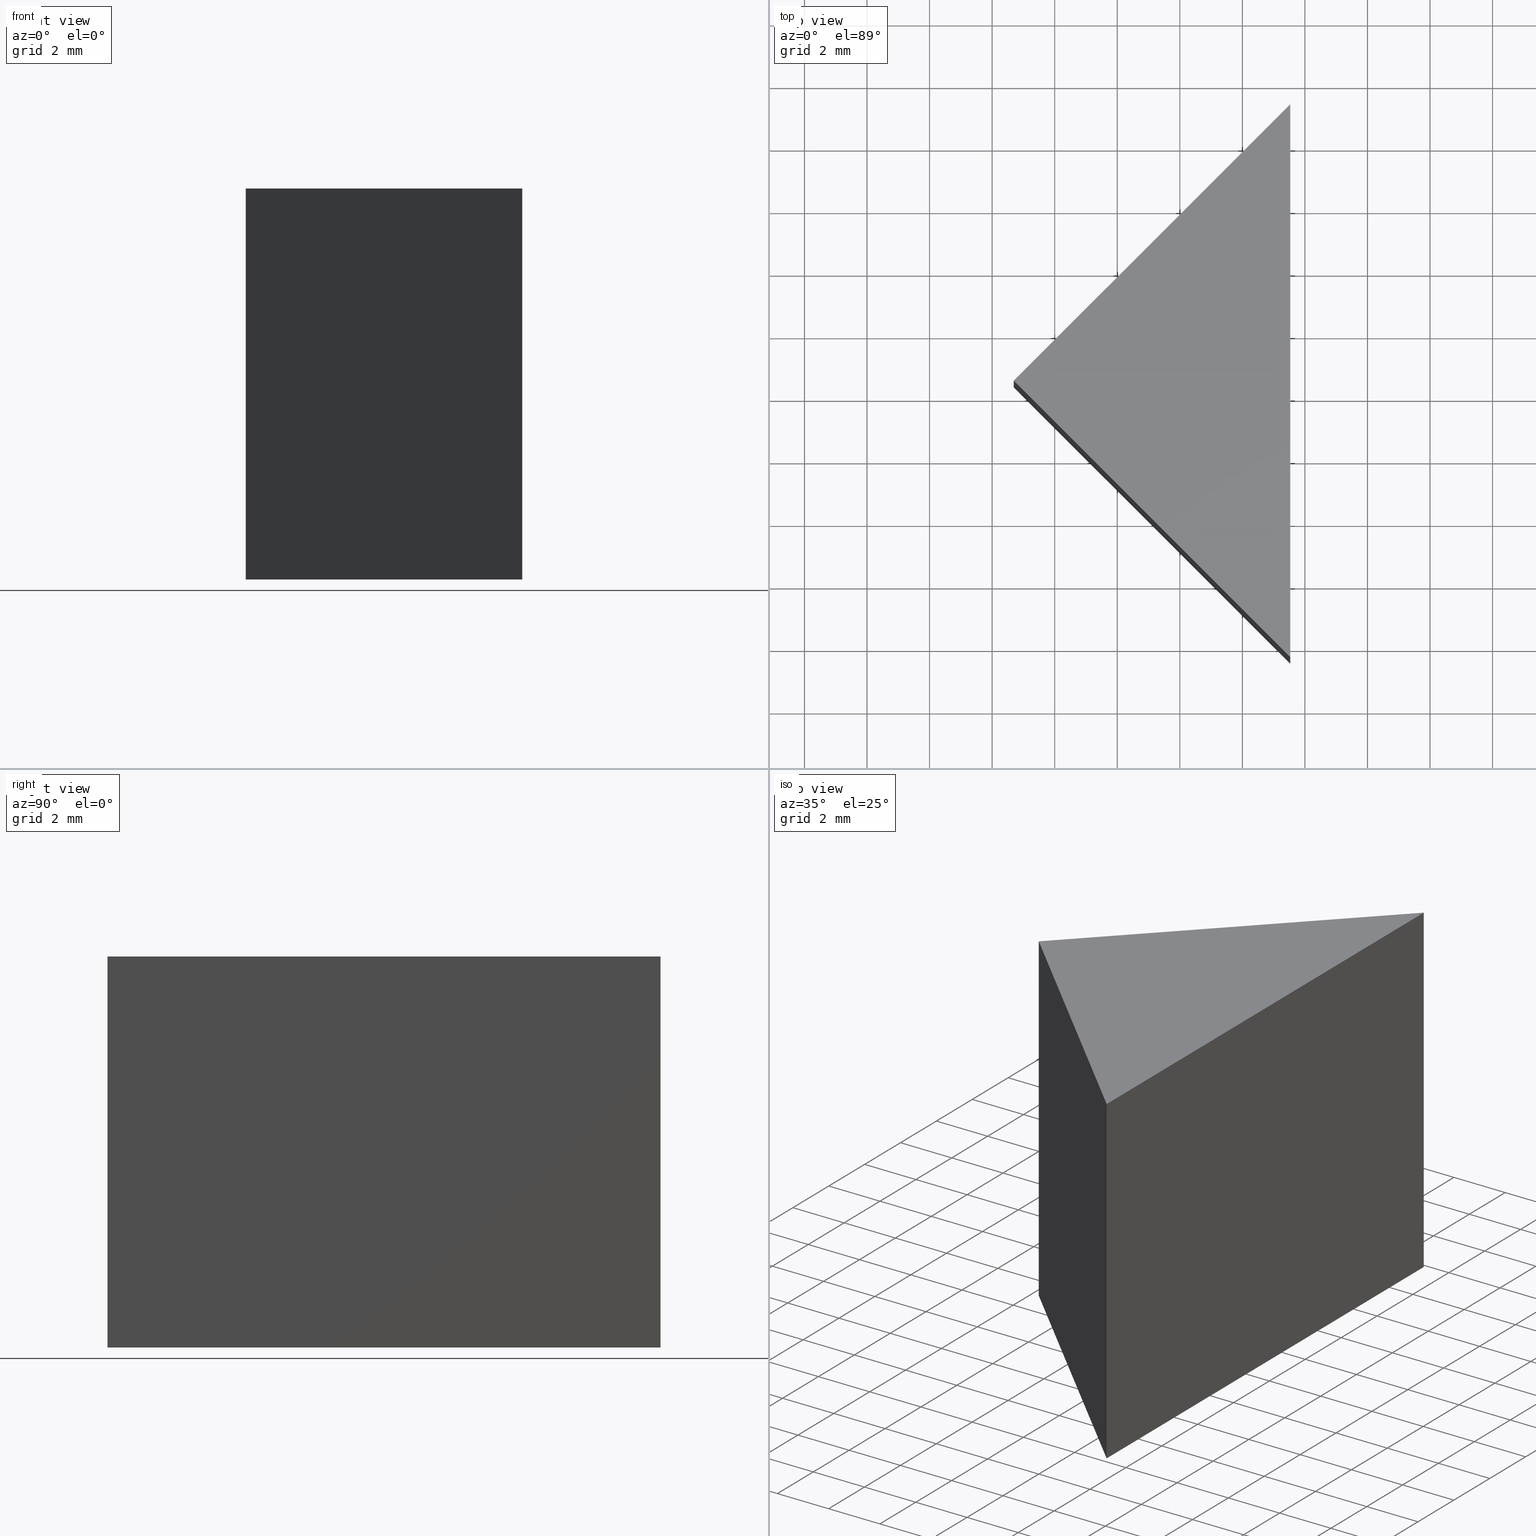
[diagram: canonical four-view strip — front | top / right | iso, engineering-drawing reading convention]
A machine part, canonical four-view strip (front | top / right | iso — engineering-drawing reading convention). The complete STEP part file that produces these views, byte-faithful:
ISO-10303-21;
HEADER;
FILE_DESCRIPTION (( 'STEP AP214' ),
    '1' );
FILE_NAME ('30002.STEP',
    '2019-08-12T07:45:10',
    ( '' ),
    ( '' ),
    'SwSTEP 2.0',
    'SolidWorks 2016',
    '' );
FILE_SCHEMA (( 'AUTOMOTIVE_DESIGN' ));
ENDSEC;

DATA;
#1 = CARTESIAN_POINT ( 'NONE',  ( 138.6916748814873000, 34.43923138208515400, 0.0000000000000000000 ) ) ;
#2 = ORIENTED_EDGE ( 'NONE', *, *, #36, .F. ) ;
#3 =( LENGTH_UNIT ( ) NAMED_UNIT ( * ) SI_UNIT ( .MILLI., .METRE. ) );
#4 =( GEOMETRIC_REPRESENTATION_CONTEXT ( 3 ) GLOBAL_UNCERTAINTY_ASSIGNED_CONTEXT ( ( #96 ) ) GLOBAL_UNIT_ASSIGNED_CONTEXT ( ( #75, #160, #60 ) ) REPRESENTATION_CONTEXT ( 'NONE', 'WORKASPACE' ) );
#5 = VECTOR ( 'NONE', #156, 1000.000000000000000 ) ;
#6 = SURFACE_STYLE_FILL_AREA ( #59 ) ;
#7 = MECHANICAL_DESIGN_GEOMETRIC_PRESENTATION_REPRESENTATION (  '', ( #107 ), #4 ) ;
#8 = VECTOR ( 'NONE', #97, 1000.000000000000000 ) ;
#9 = ORIENTED_EDGE ( 'NONE', *, *, #32, .F. ) ;
#10 = ORIENTED_EDGE ( 'NONE', *, *, #47, .F. ) ;
#11 = LINE ( 'NONE', #109, #169 ) ;
#12 = EDGE_CURVE ( 'NONE', #16, #167, #71, .T. ) ;
#13 = VERTEX_POINT ( 'NONE', #99 ) ;
#14 = DIRECTION ( 'NONE',  ( 0.7071067811865484600, 0.7071067811865465700, -0.0000000000000000000 ) ) ;
#15 = CARTESIAN_POINT ( 'NONE',  ( 138.6916748814873000, 34.43923138208515400, 12.50000000000000000 ) ) ;
#16 = VERTEX_POINT ( 'NONE', #117 ) ;
#17 = PRESENTATION_LAYER_ASSIGNMENT (  '', '', ( #124 ) ) ;
#18 = DIRECTION ( 'NONE',  ( 1.000000000000000000, 0.0000000000000000000, 0.0000000000000000000 ) ) ;
#19 = DIRECTION ( 'NONE',  ( 0.0000000000000000000, 0.0000000000000000000, 1.000000000000000000 ) ) ;
#20 = ORIENTED_EDGE ( 'NONE', *, *, #36, .T. ) ;
#21 = EDGE_LOOP ( 'NONE', ( #159, #20, #127 ) ) ;
#22 = PRODUCT_DEFINITION_FORMATION_WITH_SPECIFIED_SOURCE ( '�κ�', '', #131, .NOT_KNOWN. ) ;
#23 = EDGE_CURVE ( 'NONE', #13, #16, #38, .T. ) ;
#24 = EDGE_CURVE ( 'NONE', #43, #167, #152, .T. ) ;
#25 = DIRECTION ( 'NONE',  ( -0.0000000000000000000, -0.0000000000000000000, -1.000000000000000000 ) ) ;
#26 = DIRECTION ( 'NONE',  ( -0.0000000000000000000, -0.0000000000000000000, -1.000000000000000000 ) ) ;
#27 = ADVANCED_BREP_SHAPE_REPRESENTATION ( '30002', ( #166, #164 ), #153 ) ;
#28 =( LENGTH_UNIT ( ) NAMED_UNIT ( * ) SI_UNIT ( .MILLI., .METRE. ) );
#29 = DIRECTION ( 'NONE',  ( -1.000000000000000000, 1.570092458683774900E-015, 0.0000000000000000000 ) ) ;
#30 = PRESENTATION_LAYER_ASSIGNMENT (  '', '', ( #107 ) ) ;
#31 = APPLICATION_PROTOCOL_DEFINITION ( 'draft international standard', 'automotive_design', 1998, #61 ) ;
#32 = EDGE_CURVE ( 'NONE', #87, #43, #11, .T. ) ;
#33 = FACE_OUTER_BOUND ( 'NONE', #91, .T. ) ;
#34 = FACE_OUTER_BOUND ( 'NONE', #21, .T. ) ;
#35 = ADVANCED_FACE ( 'NONE', ( #84 ), #129, .F. ) ;
#36 = EDGE_CURVE ( 'NONE', #157, #13, #79, .T. ) ;
#37 = SHAPE_DEFINITION_REPRESENTATION ( #69, #27 ) ;
#38 = LINE ( 'NONE', #158, #5 ) ;
#39 = PRESENTATION_STYLE_ASSIGNMENT (( #48 ) ) ;
#40 = PRODUCT_RELATED_PRODUCT_CATEGORY ( 'part', '', ( #131 ) ) ;
#41 = LINE ( 'NONE', #67, #142 ) ;
#42 = EDGE_CURVE ( 'NONE', #157, #87, #116, .T. ) ;
#43 = VERTEX_POINT ( 'NONE', #56 ) ;
#44 = APPLICATION_PROTOCOL_DEFINITION ( 'draft international standard', 'automotive_design', 1998, #45 ) ;
#45 = APPLICATION_CONTEXT ( 'automotive_design' ) ;
#46 = PLANE ( 'NONE',  #64 ) ;
#47 = EDGE_CURVE ( 'NONE', #13, #43, #136, .T. ) ;
#48 = SURFACE_STYLE_USAGE ( .BOTH. , #100 ) ;
#49 = VECTOR ( 'NONE', #25, 1000.000000000000000 ) ;
#50 = ORIENTED_EDGE ( 'NONE', *, *, #24, .F. ) ;
#51 = EDGE_LOOP ( 'NONE', ( #95, #10, #2, #62 ) ) ;
#52 = EDGE_LOOP ( 'NONE', ( #134, #125, #147, #115 ) ) ;
#53 = AXIS2_PLACEMENT_3D ( 'NONE', #101, #90, #126 ) ;
#54 = DIRECTION ( 'NONE',  ( -0.7071067811865481300, -0.7071067811865470200, -0.0000000000000000000 ) ) ;
#55 = CLOSED_SHELL ( 'NONE', ( #94, #155, #35, #139, #104 ) ) ;
#56 = CARTESIAN_POINT ( 'NONE',  ( 147.5305096463191600, 43.27806614691699800, 0.0000000000000000000 ) ) ;
#57 = DIRECTION ( 'NONE',  ( 1.570092458683774700E-015, 1.000000000000000000, 0.0000000000000000000 ) ) ;
#58 = ORIENTED_EDGE ( 'NONE', *, *, #12, .T. ) ;
#59 = FILL_AREA_STYLE ('',( #76 ) ) ;
#60 =( NAMED_UNIT ( * ) SI_UNIT ( $, .STERADIAN. ) SOLID_ANGLE_UNIT ( ) );
#61 = APPLICATION_CONTEXT ( 'automotive_design' ) ;
#62 = ORIENTED_EDGE ( 'NONE', *, *, #42, .T. ) ;
#63 = UNCERTAINTY_MEASURE_WITH_UNIT (LENGTH_MEASURE( 1.000000000000000100E-005 ), #3, 'distance_accuracy_value', 'NONE');
#64 = AXIS2_PLACEMENT_3D ( 'NONE', #121, #29, #148 ) ;
#65 = FACE_OUTER_BOUND ( 'NONE', #51, .T. ) ;
#66 = ORIENTED_EDGE ( 'NONE', *, *, #42, .F. ) ;
#67 = CARTESIAN_POINT ( 'NONE',  ( 138.6916748814873000, 34.43923138208515400, 0.0000000000000000000 ) ) ;
#68 = CARTESIAN_POINT ( 'NONE',  ( 138.6916748814873000, 34.43923138208515400, 12.50000000000000000 ) ) ;
#69 = PRODUCT_DEFINITION_SHAPE ( 'NONE', 'NONE',  #123 ) ;
#70 = CARTESIAN_POINT ( 'NONE',  ( 138.6916748814873000, 34.43923138208515400, 0.0000000000000000000 ) ) ;
#71 = LINE ( 'NONE', #68, #114 ) ;
#72 = EDGE_CURVE ( 'NONE', #167, #87, #41, .T. ) ;
#73 = DIRECTION ( 'NONE',  ( 0.7071067811865465700, -0.7071067811865484600, 0.0000000000000000000 ) ) ;
#74 = DIRECTION ( 'NONE',  ( 1.000000000000000000, 0.0000000000000000000, 0.0000000000000000000 ) ) ;
#75 =( LENGTH_UNIT ( ) NAMED_UNIT ( * ) SI_UNIT ( .MILLI., .METRE. ) );
#76 = FILL_AREA_STYLE_COLOUR ( '', #133 ) ;
#77 = AXIS2_PLACEMENT_3D ( 'NONE', #15, #110, #119 ) ;
#78 = DIRECTION ( 'NONE',  ( -0.7071067811865465700, 0.7071067811865484600, 0.0000000000000000000 ) ) ;
#79 = LINE ( 'NONE', #85, #81 ) ;
#80 = SURFACE_STYLE_FILL_AREA ( #102 ) ;
#81 = VECTOR ( 'NONE', #57, 1000.000000000000000 ) ;
#82 = EDGE_CURVE ( 'NONE', #16, #157, #108, .T. ) ;
#83 = CARTESIAN_POINT ( 'NONE',  ( 138.6916748814873000, 34.43923138208515400, 12.50000000000000000 ) ) ;
#84 = FACE_OUTER_BOUND ( 'NONE', #52, .T. ) ;
#85 = CARTESIAN_POINT ( 'NONE',  ( 147.5305096463191300, 25.60039661725330600, 12.50000000000000000 ) ) ;
#86 = ORIENTED_EDGE ( 'NONE', *, *, #72, .F. ) ;
#87 = VERTEX_POINT ( 'NONE', #130 ) ;
#88 = SURFACE_SIDE_STYLE ('',( #80 ) ) ;
#89 = PLANE ( 'NONE',  #53 ) ;
#90 = DIRECTION ( 'NONE',  ( -0.0000000000000000000, 0.0000000000000000000, 1.000000000000000000 ) ) ;
#91 = EDGE_LOOP ( 'NONE', ( #86, #50, #9 ) ) ;
#92 = AXIS2_PLACEMENT_3D ( 'NONE', #98, #14, #78 ) ;
#93 = EDGE_LOOP ( 'NONE', ( #118, #66, #154, #58 ) ) ;
#94 = ADVANCED_FACE ( 'NONE', ( #165 ), #145, .F. ) ;
#95 = ORIENTED_EDGE ( 'NONE', *, *, #32, .T. ) ;
#96 = UNCERTAINTY_MEASURE_WITH_UNIT (LENGTH_MEASURE( 1.000000000000000100E-005 ), #75, 'distance_accuracy_value', 'NONE');
#97 = DIRECTION ( 'NONE',  ( -0.0000000000000000000, -0.0000000000000000000, -1.000000000000000000 ) ) ;
#98 = CARTESIAN_POINT ( 'NONE',  ( 138.6916748814873000, 34.43923138208515400, 12.50000000000000000 ) ) ;
#99 = CARTESIAN_POINT ( 'NONE',  ( 147.5305096463191600, 43.27806614691699800, 12.50000000000000000 ) ) ;
#100 = SURFACE_SIDE_STYLE ('',( #6 ) ) ;
#101 = CARTESIAN_POINT ( 'NONE',  ( 0.0000000000000000000, 0.0000000000000000000, 12.50000000000000000 ) ) ;
#102 = FILL_AREA_STYLE ('',( #113 ) ) ;
#103 = PRODUCT_CONTEXT ( 'NONE', #61, 'mechanical' ) ;
#104 = ADVANCED_FACE ( 'NONE', ( #33 ), #162, .F. ) ;
#105 = AXIS2_PLACEMENT_3D ( 'NONE', #149, #151, #74 ) ;
#106 = VECTOR ( 'NONE', #73, 1000.000000000000100 ) ;
#107 = STYLED_ITEM ( 'NONE', ( #39 ), #27 ) ;
#108 = LINE ( 'NONE', #83, #106 ) ;
#109 = CARTESIAN_POINT ( 'NONE',  ( 147.5305096463191300, 25.60039661725330600, 0.0000000000000000000 ) ) ;
#110 = DIRECTION ( 'NONE',  ( 0.7071067811865470200, -0.7071067811865481300, 0.0000000000000000000 ) ) ;
#111 =( NAMED_UNIT ( * ) PLANE_ANGLE_UNIT ( ) SI_UNIT ( $, .RADIAN. ) );
#112 = SURFACE_STYLE_USAGE ( .BOTH. , #88 ) ;
#113 = FILL_AREA_STYLE_COLOUR ( '', #132 ) ;
#114 = VECTOR ( 'NONE', #26, 1000.000000000000000 ) ;
#115 = ORIENTED_EDGE ( 'NONE', *, *, #47, .T. ) ;
#116 = LINE ( 'NONE', #120, #49 ) ;
#117 = CARTESIAN_POINT ( 'NONE',  ( 138.6916748814873000, 34.43923138208515400, 12.50000000000000000 ) ) ;
#118 = ORIENTED_EDGE ( 'NONE', *, *, #72, .T. ) ;
#119 = DIRECTION ( 'NONE',  ( 0.7071067811865481300, 0.7071067811865470200, 0.0000000000000000000 ) ) ;
#120 = CARTESIAN_POINT ( 'NONE',  ( 147.5305096463191300, 25.60039661725330600, 12.50000000000000000 ) ) ;
#121 = CARTESIAN_POINT ( 'NONE',  ( 147.5305096463191300, 25.60039661725330600, 12.50000000000000000 ) ) ;
#122 =( NAMED_UNIT ( * ) PLANE_ANGLE_UNIT ( ) SI_UNIT ( $, .RADIAN. ) );
#123 = PRODUCT_DEFINITION ( 'δ֪', '', #22, #140 ) ;
#124 = STYLED_ITEM ( 'NONE', ( #137 ), #166 ) ;
#125 = ORIENTED_EDGE ( 'NONE', *, *, #12, .F. ) ;
#126 = DIRECTION ( 'NONE',  ( 1.000000000000000000, 0.0000000000000000000, 0.0000000000000000000 ) ) ;
#127 = ORIENTED_EDGE ( 'NONE', *, *, #23, .T. ) ;
#128 = MECHANICAL_DESIGN_GEOMETRIC_PRESENTATION_REPRESENTATION (  '', ( #124 ), #141 ) ;
#129 = PLANE ( 'NONE',  #77 ) ;
#130 = CARTESIAN_POINT ( 'NONE',  ( 147.5305096463191300, 25.60039661725330600, 0.0000000000000000000 ) ) ;
#131 = PRODUCT ( '30002', '30002', '', ( #103 ) ) ;
#132 = COLOUR_RGB ( '',1.000000000000000000, 1.000000000000000000, 1.000000000000000000 ) ;
#133 = COLOUR_RGB ( '',1.000000000000000000, 1.000000000000000000, 1.000000000000000000 ) ;
#134 = ORIENTED_EDGE ( 'NONE', *, *, #24, .T. ) ;
#135 =( NAMED_UNIT ( * ) SI_UNIT ( $, .STERADIAN. ) SOLID_ANGLE_UNIT ( ) );
#136 = LINE ( 'NONE', #146, #8 ) ;
#137 = PRESENTATION_STYLE_ASSIGNMENT (( #112 ) ) ;
#138 = UNCERTAINTY_MEASURE_WITH_UNIT (LENGTH_MEASURE( 1.000000000000000100E-005 ), #28, 'distance_accuracy_value', 'NONE');
#139 = ADVANCED_FACE ( 'NONE', ( #34 ), #89, .T. ) ;
#140 = PRODUCT_DEFINITION_CONTEXT ( 'detailed design', #45, 'design' ) ;
#141 =( GEOMETRIC_REPRESENTATION_CONTEXT ( 3 ) GLOBAL_UNCERTAINTY_ASSIGNED_CONTEXT ( ( #63 ) ) GLOBAL_UNIT_ASSIGNED_CONTEXT ( ( #3, #111, #135 ) ) REPRESENTATION_CONTEXT ( 'NONE', 'WORKASPACE' ) );
#142 = VECTOR ( 'NONE', #143, 1000.000000000000100 ) ;
#143 = DIRECTION ( 'NONE',  ( 0.7071067811865465700, -0.7071067811865484600, 0.0000000000000000000 ) ) ;
#144 = VECTOR ( 'NONE', #54, 1000.000000000000000 ) ;
#145 = PLANE ( 'NONE',  #92 ) ;
#146 = CARTESIAN_POINT ( 'NONE',  ( 147.5305096463191600, 43.27806614691699800, 12.50000000000000000 ) ) ;
#147 = ORIENTED_EDGE ( 'NONE', *, *, #23, .F. ) ;
#148 = DIRECTION ( 'NONE',  ( -1.570092458683774900E-015, -1.000000000000000000, 0.0000000000000000000 ) ) ;
#149 = CARTESIAN_POINT ( 'NONE',  ( 0.0000000000000000000, 0.0000000000000000000, 0.0000000000000000000 ) ) ;
#150 =( NAMED_UNIT ( * ) SI_UNIT ( $, .STERADIAN. ) SOLID_ANGLE_UNIT ( ) );
#151 = DIRECTION ( 'NONE',  ( -0.0000000000000000000, 0.0000000000000000000, 1.000000000000000000 ) ) ;
#152 = LINE ( 'NONE', #70, #144 ) ;
#153 =( GEOMETRIC_REPRESENTATION_CONTEXT ( 3 ) GLOBAL_UNCERTAINTY_ASSIGNED_CONTEXT ( ( #138 ) ) GLOBAL_UNIT_ASSIGNED_CONTEXT ( ( #28, #122, #150 ) ) REPRESENTATION_CONTEXT ( 'NONE', 'WORKASPACE' ) );
#154 = ORIENTED_EDGE ( 'NONE', *, *, #82, .F. ) ;
#155 = ADVANCED_FACE ( 'NONE', ( #65 ), #46, .F. ) ;
#156 = DIRECTION ( 'NONE',  ( -0.7071067811865481300, -0.7071067811865470200, -0.0000000000000000000 ) ) ;
#157 = VERTEX_POINT ( 'NONE', #163 ) ;
#158 = CARTESIAN_POINT ( 'NONE',  ( 138.6916748814873000, 34.43923138208515400, 12.50000000000000000 ) ) ;
#159 = ORIENTED_EDGE ( 'NONE', *, *, #82, .T. ) ;
#160 =( NAMED_UNIT ( * ) PLANE_ANGLE_UNIT ( ) SI_UNIT ( $, .RADIAN. ) );
#161 = CARTESIAN_POINT ( 'NONE',  ( 0.0000000000000000000, 0.0000000000000000000, 0.0000000000000000000 ) ) ;
#162 = PLANE ( 'NONE',  #105 ) ;
#163 = CARTESIAN_POINT ( 'NONE',  ( 147.5305096463191300, 25.60039661725330600, 12.50000000000000000 ) ) ;
#164 = AXIS2_PLACEMENT_3D ( 'NONE', #161, #19, #18 ) ;
#165 = FACE_OUTER_BOUND ( 'NONE', #93, .T. ) ;
#166 = MANIFOLD_SOLID_BREP ( '͹̨-����1', #55 ) ;
#167 = VERTEX_POINT ( 'NONE', #1 ) ;
#168 = DIRECTION ( 'NONE',  ( 1.570092458683774700E-015, 1.000000000000000000, 0.0000000000000000000 ) ) ;
#169 = VECTOR ( 'NONE', #168, 1000.000000000000000 ) ;
ENDSEC;
END-ISO-10303-21;
